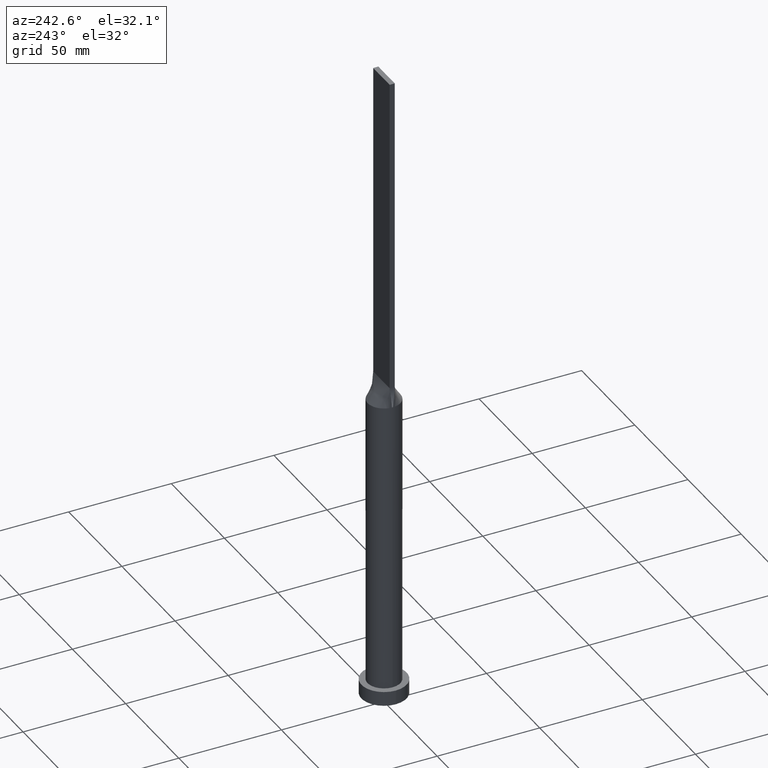
[diagram: clean part render]
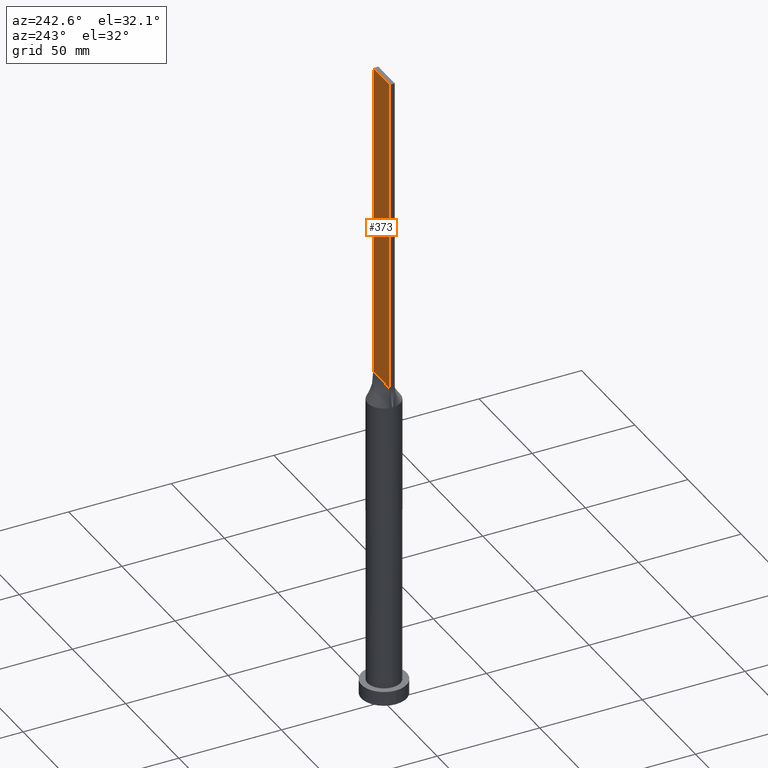
[diagram: same view with one face highlighted and labeled with its STEP entity id]
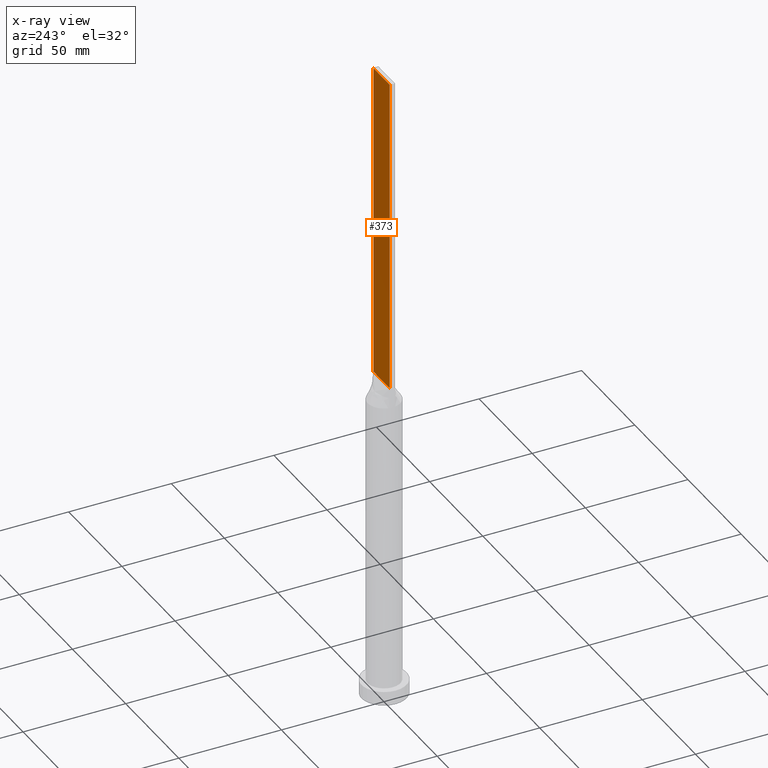
[diagram: x-ray of the same camera — body ghosted, the highlighted face saturated]
A machine part, auxiliary view. The second image highlights one B-rep face of the part: STEP entity #373.
The next image is the same camera in x-ray: the body ghosted, the highlighted face saturated — about 0% of this face is hidden behind the body in this view.
In plain terms, the highlighted planar face has unit normal (0, -1, 0).
Its self-contained STEP definition (entity closure, byte-faithful):
#28 = DIRECTION ( 'NONE',  ( -1.000000000000000000, -0.000000000000000000, -0.000000000000000000 ) ) ;
#33 = EDGE_CURVE ( 'NONE', #159, #214, #289, .T. ) ;
#36 = DIRECTION ( 'NONE',  ( -0.000000000000000000, -0.000000000000000000, -1.000000000000000000 ) ) ;
#41 = EDGE_CURVE ( 'NONE', #159, #165, #345, .T. ) ;
#63 = ORIENTED_EDGE ( 'NONE', *, *, #33, .T. ) ;
#93 = CARTESIAN_POINT ( 'NONE',  ( -7.750000000000000000, 1.250000000000000222, 160.0000000000000000 ) ) ;
#119 = VECTOR ( 'NONE', #28, 1000.000000000000000 ) ;
#120 = ORIENTED_EDGE ( 'NONE', *, *, #41, .F. ) ;
#125 = DIRECTION ( 'NONE',  ( 0.000000000000000000, -0.000000000000000000, -1.000000000000000000 ) ) ;
#138 = CARTESIAN_POINT ( 'NONE',  ( -7.750000000000000000, 1.250000000000000222, 315.0000000000000000 ) ) ;
#159 = VERTEX_POINT ( 'NONE', #230 ) ;
#165 = VERTEX_POINT ( 'NONE', #339 ) ;
#168 = CARTESIAN_POINT ( 'NONE',  ( 7.750000000000000000, 1.250000000000000222, 315.0000000000000000 ) ) ;
#188 = LINE ( 'NONE', #138, #324 ) ;
#214 = VERTEX_POINT ( 'NONE', #348 ) ;
#230 = CARTESIAN_POINT ( 'NONE',  ( 7.750000000000000000, 1.250000000000000222, 315.0000000000000000 ) ) ;
#235 = CARTESIAN_POINT ( 'NONE',  ( 7.750000000000000000, 1.250000000000000222, 315.0000000000000000 ) ) ;
#245 = AXIS2_PLACEMENT_3D ( 'NONE', #168, #577, #125 ) ;
#271 = EDGE_LOOP ( 'NONE', ( #620, #329, #120, #63 ) ) ;
#289 = LINE ( 'NONE', #532, #634 ) ;
#292 = DIRECTION ( 'NONE',  ( -1.000000000000000000, 0.000000000000000000, 0.000000000000000000 ) ) ;
#319 = EDGE_CURVE ( 'NONE', #165, #326, #188, .T. ) ;
#324 = VECTOR ( 'NONE', #488, 1000.000000000000000 ) ;
#326 = VERTEX_POINT ( 'NONE', #581 ) ;
#329 = ORIENTED_EDGE ( 'NONE', *, *, #319, .F. ) ;
#336 = PLANE ( 'NONE',  #245 ) ;
#339 = CARTESIAN_POINT ( 'NONE',  ( -7.750000000000000000, 1.250000000000000222, 315.0000000000000000 ) ) ;
#345 = LINE ( 'NONE', #235, #624 ) ;
#348 = CARTESIAN_POINT ( 'NONE',  ( 7.750000000000000000, 1.250000000000000222, 160.0000000000000000 ) ) ;
#369 = EDGE_CURVE ( 'NONE', #214, #326, #442, .T. ) ;
#373 = ADVANCED_FACE ( 'NONE', ( #430 ), #336, .F. ) ;
#430 = FACE_OUTER_BOUND ( 'NONE', #271, .T. ) ;
#442 = LINE ( 'NONE', #93, #119 ) ;
#488 = DIRECTION ( 'NONE',  ( -0.000000000000000000, -0.000000000000000000, -1.000000000000000000 ) ) ;
#532 = CARTESIAN_POINT ( 'NONE',  ( 7.750000000000000000, 1.250000000000000222, 315.0000000000000000 ) ) ;
#577 = DIRECTION ( 'NONE',  ( 0.000000000000000000, -1.000000000000000000, 0.000000000000000000 ) ) ;
#581 = CARTESIAN_POINT ( 'NONE',  ( -7.750000000000000000, 1.250000000000000222, 160.0000000000000000 ) ) ;
#620 = ORIENTED_EDGE ( 'NONE', *, *, #369, .T. ) ;
#624 = VECTOR ( 'NONE', #292, 1000.000000000000000 ) ;
#634 = VECTOR ( 'NONE', #36, 1000.000000000000000 ) ;